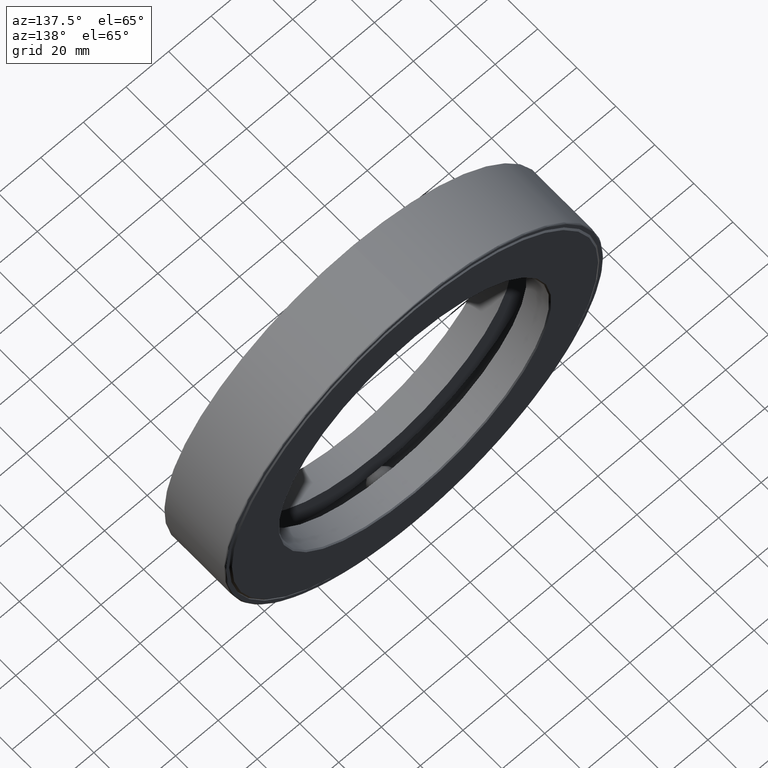
[diagram: clean part render]
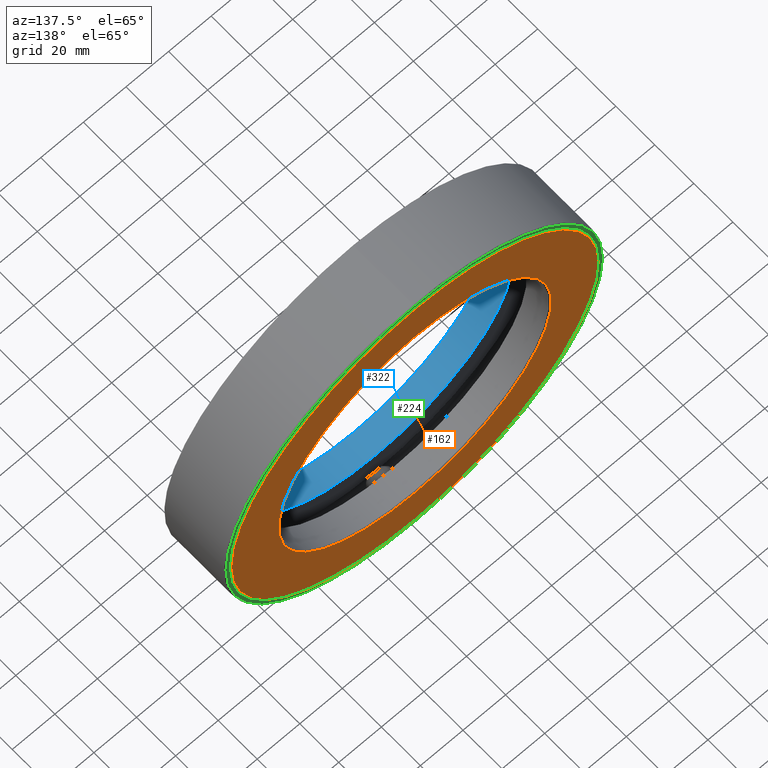
[diagram: same view with three faces highlighted in distinct colors, each labeled with its STEP entity id]
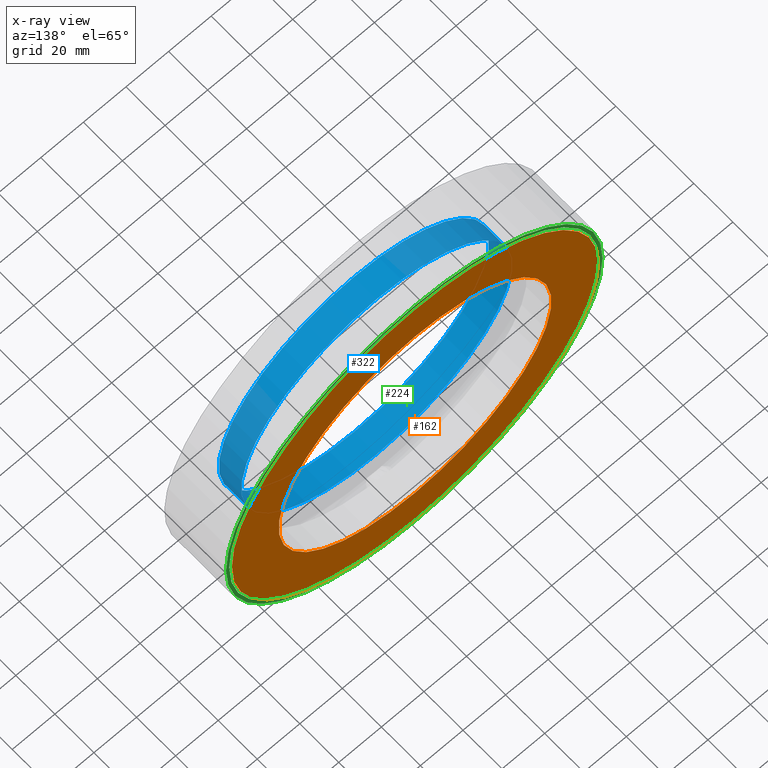
[diagram: x-ray of the same camera — body ghosted, the three highlighted faces saturated]
A machine part, auxiliary view with three faces highlighted in distinct colors.
The next image is the same camera in x-ray (body ghosted, the three faces saturated) — at least one of them is partly hidden behind the body in this view.
Their STEP definitions:

[orange] entity #162 — the highlighted planar face has unit normal (-0, 1, 0).
#1 = EDGE_CURVE ( 'NONE', #511, #511, #290, .T. ) ;
#18 = DIRECTION ( 'NONE',  ( -0.0000000000000000000, 1.000000000000000000, 0.0000000000000000000 ) ) ;
#45 = CARTESIAN_POINT ( 'NONE',  ( 0.0000000000000000000, 1.249999999999999800, 3.384999999999998900 ) ) ;
#46 = DIRECTION ( 'NONE',  ( 0.0000000000000000000, 0.0000000000000000000, 1.000000000000000000 ) ) ;
#72 = AXIS2_PLACEMENT_3D ( 'NONE', #178, #226, #540 ) ;
#113 = EDGE_LOOP ( 'NONE', ( #473 ) ) ;
#121 = AXIS2_PLACEMENT_3D ( 'NONE', #529, #18, #441 ) ;
#162 = ADVANCED_FACE ( 'NONE', ( #555, #264 ), #165, .T. ) ;
#165 = PLANE ( 'NONE',  #121 ) ;
#178 = CARTESIAN_POINT ( 'NONE',  ( 0.0000000000000000000, 1.249999999999999800, 0.0000000000000000000 ) ) ;
#220 = VERTEX_POINT ( 'NONE', #45 ) ;
#226 = DIRECTION ( 'NONE',  ( -0.0000000000000000000, 1.000000000000000000, -0.0000000000000000000 ) ) ;
#228 = CARTESIAN_POINT ( 'NONE',  ( 0.0000000000000000000, 1.250000000000000000, 2.520000000000000000 ) ) ;
#264 = FACE_BOUND ( 'NONE', #393, .T. ) ;
#267 = EDGE_CURVE ( 'NONE', #220, #220, #474, .T. ) ;
#290 = CIRCLE ( 'NONE', #327, 2.520000000000000000 ) ;
#327 = AXIS2_PLACEMENT_3D ( 'NONE', #557, #374, #46 ) ;
#374 = DIRECTION ( 'NONE',  ( -0.0000000000000000000, 1.000000000000000000, -0.0000000000000000000 ) ) ;
#393 = EDGE_LOOP ( 'NONE', ( #532 ) ) ;
#441 = DIRECTION ( 'NONE',  ( 0.0000000000000000000, 0.0000000000000000000, 1.000000000000000000 ) ) ;
#473 = ORIENTED_EDGE ( 'NONE', *, *, #267, .T. ) ;
#474 = CIRCLE ( 'NONE', #72, 3.384999999999998900 ) ;
#511 = VERTEX_POINT ( 'NONE', #228 ) ;
#529 = CARTESIAN_POINT ( 'NONE',  ( -3.947757216277844600E-016, 1.250000000000000000, 0.0000000000000000000 ) ) ;
#532 = ORIENTED_EDGE ( 'NONE', *, *, #1, .F. ) ;
#540 = DIRECTION ( 'NONE',  ( 0.0000000000000000000, 0.0000000000000000000, 1.000000000000000000 ) ) ;
#555 = FACE_OUTER_BOUND ( 'NONE', #113, .T. ) ;
#557 = CARTESIAN_POINT ( 'NONE',  ( 0.0000000000000000000, 1.250000000000000000, 0.0000000000000000000 ) ) ;

[blue] entity #322 — the highlighted cylindrical surface (bore or boss wall) has radius 63.5 mm, axis along (-0, 1, -0).
#52 = CIRCLE ( 'NONE', #148, 2.500000000000000000 ) ;
#53 = AXIS2_PLACEMENT_3D ( 'NONE', #134, #359, #181 ) ;
#132 = DIRECTION ( 'NONE',  ( 0.0000000000000000000, 0.0000000000000000000, 1.000000000000000000 ) ) ;
#134 = CARTESIAN_POINT ( 'NONE',  ( 0.0000000000000000000, 0.01999999999999978500, 0.0000000000000000000 ) ) ;
#138 = DIRECTION ( 'NONE',  ( 0.0000000000000000000, 0.0000000000000000000, 1.000000000000000000 ) ) ;
#148 = AXIS2_PLACEMENT_3D ( 'NONE', #454, #363, #138 ) ;
#158 = AXIS2_PLACEMENT_3D ( 'NONE', #537, #313, #132 ) ;
#176 = CYLINDRICAL_SURFACE ( 'NONE', #158, 2.500000000000000000 ) ;
#181 = DIRECTION ( 'NONE',  ( 0.0000000000000000000, 0.0000000000000000000, 1.000000000000000000 ) ) ;
#284 = CARTESIAN_POINT ( 'NONE',  ( 0.0000000000000000000, 0.01999999999999978500, 2.500000000000000000 ) ) ;
#297 = FACE_OUTER_BOUND ( 'NONE', #396, .T. ) ;
#313 = DIRECTION ( 'NONE',  ( -0.0000000000000000000, 1.000000000000000000, -0.0000000000000000000 ) ) ;
#322 = ADVANCED_FACE ( 'NONE', ( #385, #297 ), #176, .F. ) ;
#343 = EDGE_LOOP ( 'NONE', ( #459 ) ) ;
#359 = DIRECTION ( 'NONE',  ( -0.0000000000000000000, 1.000000000000000000, -0.0000000000000000000 ) ) ;
#363 = DIRECTION ( 'NONE',  ( -0.0000000000000000000, 1.000000000000000000, -0.0000000000000000000 ) ) ;
#385 = FACE_OUTER_BOUND ( 'NONE', #343, .T. ) ;
#388 = VERTEX_POINT ( 'NONE', #284 ) ;
#396 = EDGE_LOOP ( 'NONE', ( #445 ) ) ;
#438 = CIRCLE ( 'NONE', #53, 2.500000000000000000 ) ;
#445 = ORIENTED_EDGE ( 'NONE', *, *, #524, .T. ) ;
#454 = CARTESIAN_POINT ( 'NONE',  ( 0.0000000000000000000, 0.4750000000000002000, 0.0000000000000000000 ) ) ;
#459 = ORIENTED_EDGE ( 'NONE', *, *, #528, .F. ) ;
#460 = VERTEX_POINT ( 'NONE', #562 ) ;
#524 = EDGE_CURVE ( 'NONE', #460, #460, #52, .T. ) ;
#528 = EDGE_CURVE ( 'NONE', #388, #388, #438, .T. ) ;
#537 = CARTESIAN_POINT ( 'NONE',  ( 0.0000000000000000000, 0.0000000000000000000, 0.0000000000000000000 ) ) ;
#562 = CARTESIAN_POINT ( 'NONE',  ( 0.0000000000000000000, 0.4750000000000002000, 2.500000000000000000 ) ) ;

[green] entity #224 — the highlighted planar face has unit normal (0, -1, 0).
#24 = DIRECTION ( 'NONE',  ( 0.0000000000000000000, -1.000000000000000000, 0.0000000000000000000 ) ) ;
#63 = ORIENTED_EDGE ( 'NONE', *, *, #554, .T. ) ;
#87 = AXIS2_PLACEMENT_3D ( 'NONE', #546, #276, #360 ) ;
#188 = DIRECTION ( 'NONE',  ( -0.0000000000000000000, 1.000000000000000000, -0.0000000000000000000 ) ) ;
#203 = ORIENTED_EDGE ( 'NONE', *, *, #564, .F. ) ;
#224 = ADVANCED_FACE ( 'NONE', ( #544, #600 ), #584, .F. ) ;
#251 = VERTEX_POINT ( 'NONE', #335 ) ;
#273 = CARTESIAN_POINT ( 'NONE',  ( 0.0000000000000000000, 1.235000000000000100, 0.0000000000000000000 ) ) ;
#275 = EDGE_LOOP ( 'NONE', ( #203 ) ) ;
#276 = DIRECTION ( 'NONE',  ( -0.0000000000000000000, 1.000000000000000000, -0.0000000000000000000 ) ) ;
#329 = AXIS2_PLACEMENT_3D ( 'NONE', #273, #188, #502 ) ;
#335 = CARTESIAN_POINT ( 'NONE',  ( 0.0000000000000000000, 1.235000000000000100, 3.480000000000000000 ) ) ;
#342 = DIRECTION ( 'NONE',  ( 0.0000000000000000000, -0.0000000000000000000, -1.000000000000000000 ) ) ;
#360 = DIRECTION ( 'NONE',  ( 0.0000000000000000000, 0.0000000000000000000, 1.000000000000000000 ) ) ;
#407 = EDGE_LOOP ( 'NONE', ( #63 ) ) ;
#432 = VERTEX_POINT ( 'NONE', #472 ) ;
#452 = AXIS2_PLACEMENT_3D ( 'NONE', #531, #24, #342 ) ;
#472 = CARTESIAN_POINT ( 'NONE',  ( 0.0000000000000000000, 1.235000000000000300, 3.419999999999999000 ) ) ;
#502 = DIRECTION ( 'NONE',  ( 0.0000000000000000000, 0.0000000000000000000, 1.000000000000000000 ) ) ;
#531 = CARTESIAN_POINT ( 'NONE',  ( -5.623053786958921300E-015, 1.235000000000000300, 0.0000000000000000000 ) ) ;
#544 = FACE_BOUND ( 'NONE', #275, .T. ) ;
#546 = CARTESIAN_POINT ( 'NONE',  ( 0.0000000000000000000, 1.235000000000000300, 0.0000000000000000000 ) ) ;
#554 = EDGE_CURVE ( 'NONE', #251, #251, #566, .T. ) ;
#564 = EDGE_CURVE ( 'NONE', #432, #432, #573, .T. ) ;
#566 = CIRCLE ( 'NONE', #329, 3.480000000000000000 ) ;
#573 = CIRCLE ( 'NONE', #87, 3.419999999999999000 ) ;
#584 = PLANE ( 'NONE',  #452 ) ;
#600 = FACE_OUTER_BOUND ( 'NONE', #407, .T. ) ;